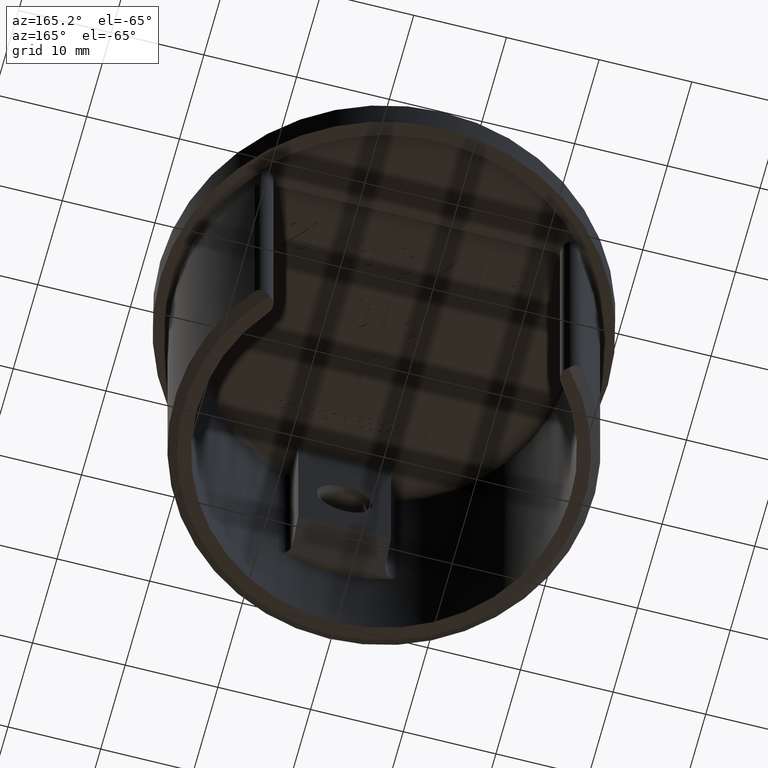
[diagram: clean part render]
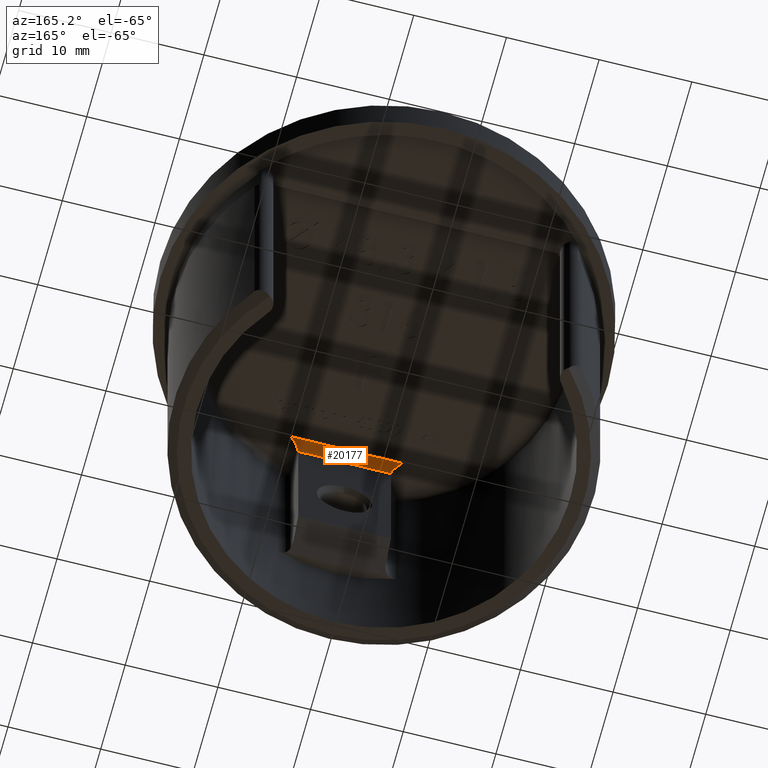
[diagram: same view with one face highlighted and labeled with its STEP entity id]
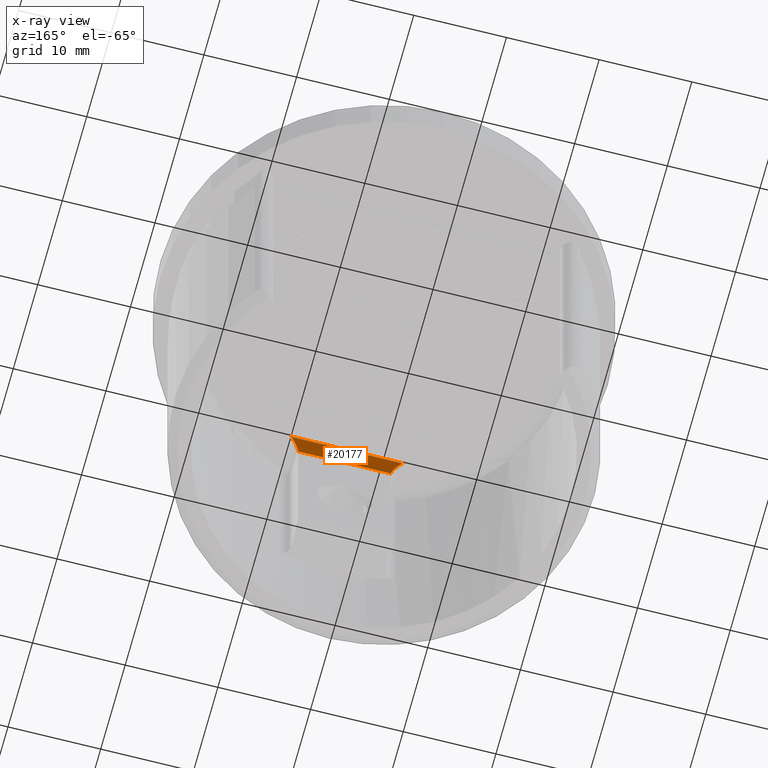
[diagram: x-ray of the same camera — body ghosted, the highlighted face saturated]
A machine part, auxiliary view. The second image highlights one B-rep face of the part: STEP entity #20177.
The next image is the same camera in x-ray: the body ghosted, the highlighted face saturated — about 0% of this face is hidden behind the body in this view.
In plain terms, the highlighted cylindrical surface (edge-blend (fillet) strip) has radius 1 mm, axis along (1, 0, 0).
Its self-contained STEP definition (entity closure, byte-faithful):
#203 = DIRECTION ( 'NONE',  ( 1.000000000000000000, 0.0000000000000000000, 0.0000000000000000000 ) ) ;
#1274 = CARTESIAN_POINT ( 'NONE',  ( 5.999999999999998200, -16.10000000000001600, 1.000000000000000000 ) ) ;
#2085 = AXIS2_PLACEMENT_3D ( 'NONE', #15589, #203, #20895 ) ;
#2553 = CARTESIAN_POINT ( 'NONE',  ( 4.999999999999998200, -16.10000000000001600, 1.000000000000000900 ) ) ;
#2651 = EDGE_CURVE ( 'NONE', #4554, #16044, #12051, .T. ) ;
#3532 = EDGE_CURVE ( 'NONE', #16044, #17997, #16224, .T. ) ;
#4554 = VERTEX_POINT ( 'NONE', #17570 ) ;
#4571 = CARTESIAN_POINT ( 'NONE',  ( -5.999999999999998200, -15.10000000000001600, 2.000000000000000000 ) ) ;
#6090 = FACE_OUTER_BOUND ( 'NONE', #14111, .T. ) ;
#6241 = CARTESIAN_POINT ( 'NONE',  ( -5.414213562373094900, -15.68578643762692200, 2.000000000000000000 ) ) ;
#6477 = EDGE_CURVE ( 'NONE', #17997, #15526, #8624, .T. ) ;
#6577 = DIRECTION ( 'NONE',  ( 1.000000000000000000, -0.0000000000000000000, -0.0000000000000000000 ) ) ;
#8008 = CARTESIAN_POINT ( 'NONE',  ( -4.999999999999999100, -16.10000000000001600, 1.585786437626905700 ) ) ;
#8624 = LINE ( 'NONE', #1274, #20698 ) ;
#9871 = VECTOR ( 'NONE', #16959, 1000.000000000000000 ) ;
#10568 = CARTESIAN_POINT ( 'NONE',  ( 4.999999999999998200, -16.10000000000001600, 1.000000000000000900 ) ) ;
#11168 = CARTESIAN_POINT ( 'NONE',  ( -5.999999999999998200, -15.10000000000001600, 2.000000000000000000 ) ) ;
#11187 = CARTESIAN_POINT ( 'NONE',  ( 4.999999999999999100, -16.10000000000001600, 1.585786437626905100 ) ) ;
#12051 = LINE ( 'NONE', #4571, #9871 ) ;
#12152 = EDGE_CURVE ( 'NONE', #15526, #4554, #19866, .T. ) ;
#14111 = EDGE_LOOP ( 'NONE', ( #15914, #19629, #15318, #18282 ) ) ;
#14653 = CARTESIAN_POINT ( 'NONE',  ( 5.999999999999999100, -15.10000000000001600, 2.000000000000000000 ) ) ;
#15318 = ORIENTED_EDGE ( 'NONE', *, *, #3532, .F. ) ;
#15526 = VERTEX_POINT ( 'NONE', #10568 ) ;
#15589 = CARTESIAN_POINT ( 'NONE',  ( -16.72500000000000500, -15.10000000000001600, 1.000000000000000000 ) ) ;
#15914 = ORIENTED_EDGE ( 'NONE', *, *, #12152, .F. ) ;
#16044 = VERTEX_POINT ( 'NONE', #17682 ) ;
#16224 =( BOUNDED_CURVE ( )  B_SPLINE_CURVE ( 3, ( #11168, #6241, #8008, #21879 ),
 .UNSPECIFIED., .F., .F. ) 
 B_SPLINE_CURVE_WITH_KNOTS ( ( 4, 4 ),
 ( 1.570796326794896600, 3.141592653589792200 ),
 .UNSPECIFIED. ) 
 CURVE ( )  GEOMETRIC_REPRESENTATION_ITEM ( )  RATIONAL_B_SPLINE_CURVE ( ( 1.000000000000000000, 0.8047378541243652700, 0.8047378541243652700, 1.000000000000000000 ) ) 
 REPRESENTATION_ITEM ( '' )  );
#16959 = DIRECTION ( 'NONE',  ( -1.000000000000000000, 0.0000000000000000000, 0.0000000000000000000 ) ) ;
#17570 = CARTESIAN_POINT ( 'NONE',  ( 5.999999999999999100, -15.10000000000001600, 2.000000000000000000 ) ) ;
#17682 = CARTESIAN_POINT ( 'NONE',  ( -5.999999999999998200, -15.10000000000001600, 2.000000000000000000 ) ) ;
#17997 = VERTEX_POINT ( 'NONE', #21507 ) ;
#18117 = CARTESIAN_POINT ( 'NONE',  ( 5.414213562373094900, -15.68578643762692200, 2.000000000000000000 ) ) ;
#18282 = ORIENTED_EDGE ( 'NONE', *, *, #2651, .F. ) ;
#19629 = ORIENTED_EDGE ( 'NONE', *, *, #6477, .F. ) ;
#19866 =( BOUNDED_CURVE ( )  B_SPLINE_CURVE ( 3, ( #2553, #11187, #18117, #14653 ),
 .UNSPECIFIED., .F., .T. ) 
 B_SPLINE_CURVE_WITH_KNOTS ( ( 4, 4 ),
 ( 8.673617379884026600E-016, 1.570796326794896600 ),
 .UNSPECIFIED. ) 
 CURVE ( )  GEOMETRIC_REPRESENTATION_ITEM ( )  RATIONAL_B_SPLINE_CURVE ( ( 1.000000000000000000, 0.8047378541243652700, 0.8047378541243652700, 1.000000000000000000 ) ) 
 REPRESENTATION_ITEM ( '' )  );
#20177 = ADVANCED_FACE ( 'NONE', ( #6090 ), #22555, .F. ) ;
#20698 = VECTOR ( 'NONE', #6577, 1000.000000000000000 ) ;
#20895 = DIRECTION ( 'NONE',  ( 0.0000000000000000000, 0.0000000000000000000, -1.000000000000000000 ) ) ;
#21507 = CARTESIAN_POINT ( 'NONE',  ( -4.999999999999998200, -16.10000000000001600, 1.000000000000000900 ) ) ;
#21879 = CARTESIAN_POINT ( 'NONE',  ( -4.999999999999998200, -16.10000000000001600, 1.000000000000000900 ) ) ;
#22555 = CYLINDRICAL_SURFACE ( 'NONE', #2085, 1.000000000000000000 ) ;